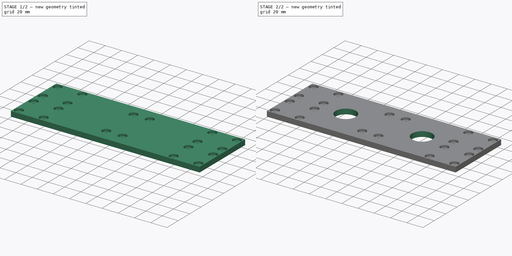
[diagram: build sequence overview — one tinted view per stage of 2, left to right]
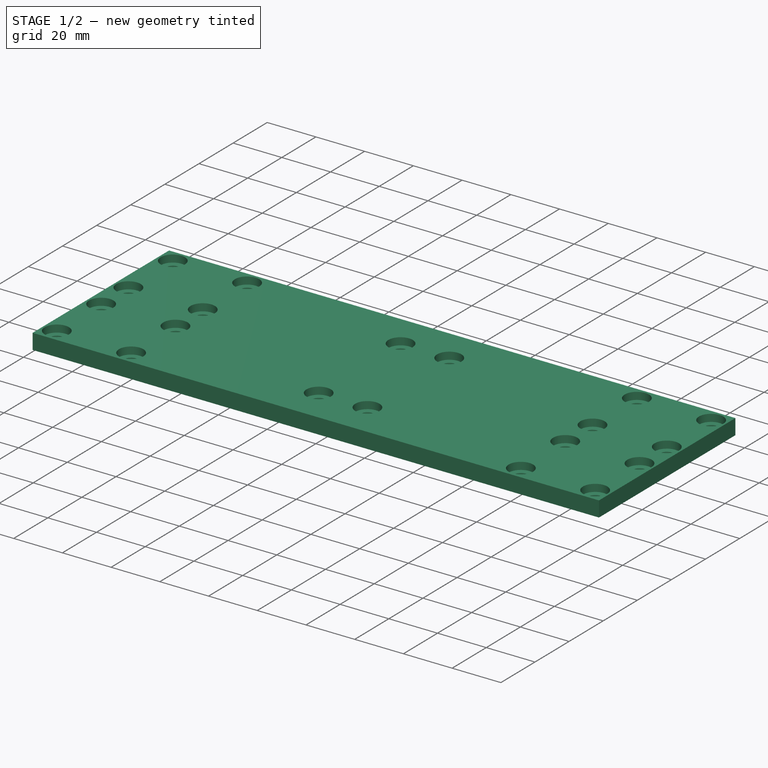
[diagram: stage 1 of 2 — iso view after this stage's code; geometry added in this stage tinted green]
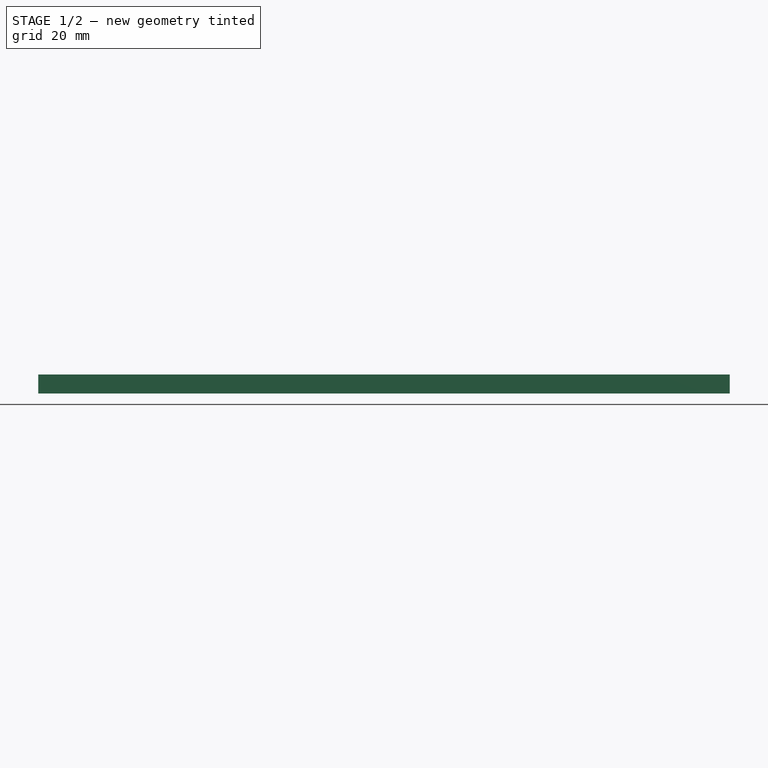
[diagram: stage 1 of 2 — front view after this stage's code; geometry added in this stage tinted green]
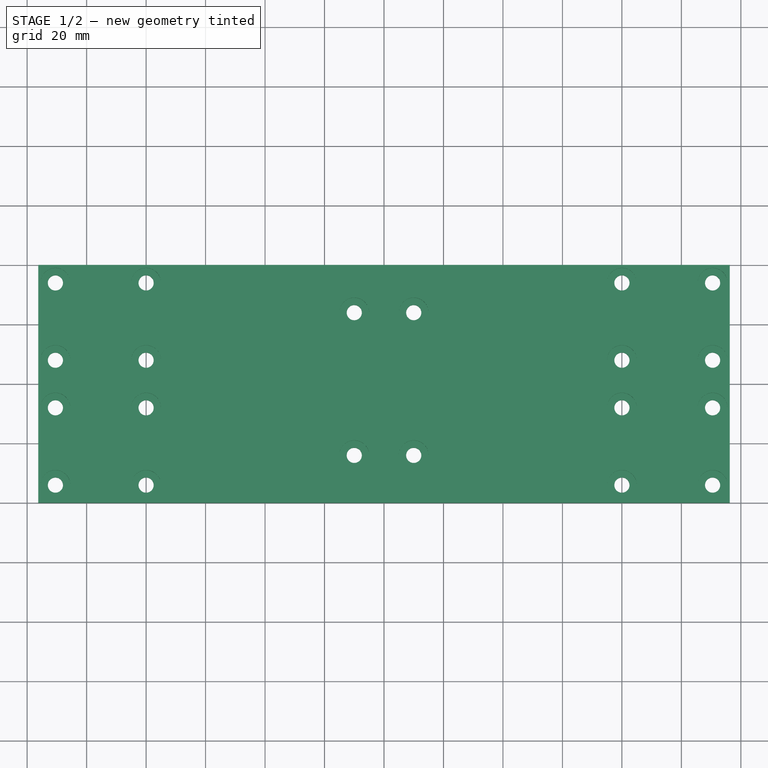
[diagram: stage 1 of 2 — top view after this stage's code; geometry added in this stage tinted green]
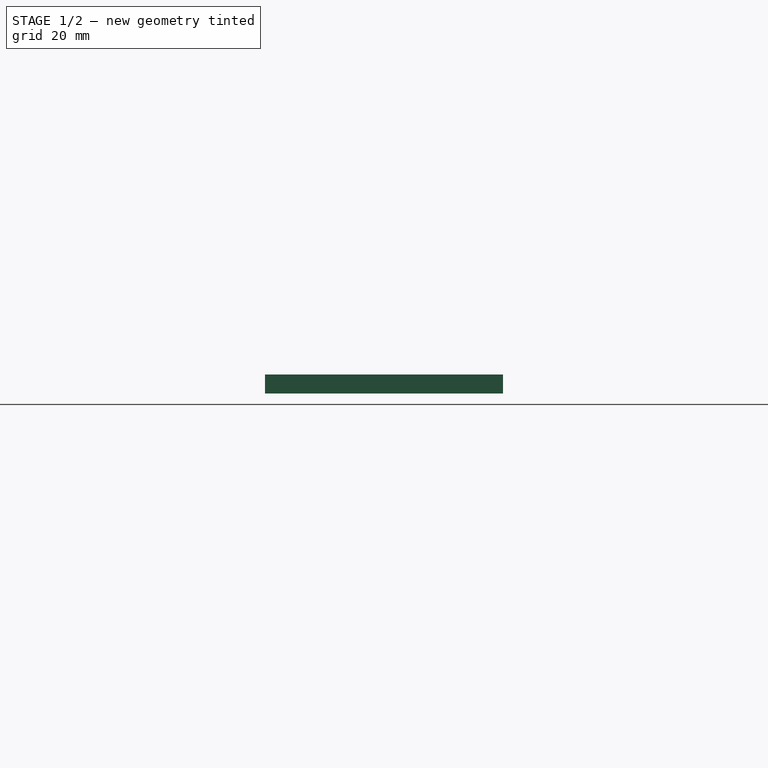
[diagram: stage 1 of 2 — right view after this stage's code; geometry added in this stage tinted green]
FCSTD DOCUMENT  (FreeCAD 0.19R23578 (Git))
Label: z_axis_bearing_plate
License: All rights reserved
LicenseURL: http://en.wikipedia.org/wiki/All_rights_reserved
objects: PartDesign::CoordinateSystem×6, Sketcher::SketchObject×3, PartDesign::Pad×1, PartDesign::Hole×1, PartDesign::Pocket×1, PartDesign::Body×1, App::Part×1
note: 16 computed .brp shape members not serialized (recipe doc carries the construction recipe); baked Part::Feature solids carry a one-line shape summary decoded from their .brp

FEATURE [Sketcher::SketchObject] Sketch023
  MapMode = 5
  Support = -> [XY_Plane029]
  sketch-geometry (6):
    g0: LineSegment StartX=-116.25 StartY=40 StartZ=0 EndX=116.25 EndY=40 EndZ=0
    g1: LineSegment StartX=116.25 StartY=40 StartZ=0 EndX=116.25 EndY=-40 EndZ=0
    g2: LineSegment StartX=116.25 StartY=-40 StartZ=0 EndX=-116.25 EndY=-40 EndZ=0
    g3: LineSegment StartX=-116.25 StartY=-40 StartZ=0 EndX=-116.25 EndY=40 EndZ=0
    g4: LineSegment StartX=-116.25 StartY=40 StartZ=0 EndX=116.25 EndY=-40 EndZ=0
    g5: LineSegment StartX=116.25 StartY=40 StartZ=0 EndX=-116.25 EndY=-40 EndZ=0
  constraints (16):
    c: Coincident(g0,g1)
    c: Coincident(g1,g2)
    c: Coincident(g2,g3)
    c: Coincident(g3,g0)
    c: Horizontal(g0)
    c: Horizontal(g2)
    c: Vertical(g1)
    c: Vertical(g3)
    c: DistanceX(g0,g0) = 232.5  'plate_width'
    c: DistanceY(g3,g3) = 80  'plate_height'
    c: Coincident(g4,g0)
    c: Coincident(g4,g1)
    c: Coincident(g5,g0)
    c: Coincident(g5,g2)
    c: PointOnObject(g-1,g5)
    c: PointOnObject(g-1,g4)
FEATURE [PartDesign::Pad] Pad011
  AllowMultiFace = false
  Direction = (1,1,1)
  Length = 6.35
  Length2 = 100
  Profile = -> Sketch023
  Type = 0
FEATURE [Sketcher::SketchObject] Sketch024
  AttachmentOffset = pos=(0,0,6.35) rot=(0,0,1;0rad)
  MapMode = 5
  Placement = pos=(0,0,6.35) rot=(0,0,1;0rad)
  Support = -> [XY_Plane029]
  sketch-geometry (55):
    g0: Circle CenterX=-110.5 CenterY=34 CenterZ=0 NormalX=0 NormalY=0 NormalZ=1 AngleXU=0 Radius=2.55
    g1: Circle CenterX=-110.5 CenterY=8 CenterZ=0 NormalX=0 NormalY=0 NormalZ=1 AngleXU=0 Radius=2.55
    g2: Circle CenterX=-80 CenterY=34 CenterZ=0 NormalX=0 NormalY=0 NormalZ=1 AngleXU=0 Radius=2.55
    g3: Circle CenterX=-80 CenterY=8 CenterZ=0 NormalX=0 NormalY=0 NormalZ=1 AngleXU=0 Radius=2.55
    g4: LineSegment StartX=-110.5 StartY=34 StartZ=0 EndX=-80 EndY=34 EndZ=0
    g5: LineSegment StartX=-80 StartY=34 StartZ=0 EndX=-80 EndY=8 EndZ=0
    g6: LineSegment StartX=-80 StartY=8 StartZ=0 EndX=-110.5 EndY=8 EndZ=0
    g7: LineSegment StartX=-110.5 StartY=8 StartZ=0 EndX=-110.5 EndY=34 EndZ=0
    g8: GeomPoint X=-95.25 Y=21 Z=0
    g9: LineSegment StartX=-110.5 StartY=34 StartZ=0 EndX=-80 EndY=8 EndZ=0
    g10: LineSegment StartX=-80 StartY=34 StartZ=0 EndX=-110.5 EndY=8 EndZ=0
    g11: Circle CenterX=80 CenterY=34 CenterZ=0 NormalX=0 NormalY=0 NormalZ=1 AngleXU=0 Radius=2.55
    g12: Circle CenterX=80 CenterY=8 CenterZ=0 NormalX=0 NormalY=0 NormalZ=1 AngleXU=0 Radius=2.55
    g13: Circle CenterX=110.5 CenterY=34 CenterZ=0 NormalX=0 NormalY=0 NormalZ=1 AngleXU=0 Radius=2.55
    g14: Circle CenterX=110.5 CenterY=8 CenterZ=0 NormalX=0 NormalY=0 NormalZ=1 AngleXU=0 Radius=2.55
    g15: LineSegment StartX=80 StartY=34 StartZ=0 EndX=110.5 EndY=34 EndZ=0
    g16: LineSegment StartX=110.5 StartY=34 StartZ=0 EndX=110.5 EndY=8 EndZ=0
    g17: LineSegment StartX=110.5 StartY=8 StartZ=0 EndX=80 EndY=8 EndZ=0
    g18: LineSegment StartX=80 StartY=8 StartZ=0 EndX=80 EndY=34 EndZ=0
    g19: GeomPoint X=95.25 Y=21 Z=0
    g20: LineSegment StartX=80 StartY=34 StartZ=0 EndX=110.5 EndY=8 EndZ=0
    g21: LineSegment StartX=110.5 StartY=34 StartZ=0 EndX=80 EndY=8 EndZ=0
    g22: LineSegment StartX=-110.5 StartY=34 StartZ=0 EndX=80 EndY=34 EndZ=0
    g23: Circle CenterX=-110.5 CenterY=-8 CenterZ=0 NormalX=0 NormalY=0 NormalZ=1 AngleXU=0 Radius=2.55
    g24: Circle CenterX=-110.5 CenterY=-34 CenterZ=0 NormalX=0 NormalY=0 NormalZ=1 AngleXU=0 Radius=2.55
    g25: Circle CenterX=-80 CenterY=-8 CenterZ=0 NormalX=0 NormalY=0 NormalZ=1 AngleXU=0 Radius=2.55
    g26: Circle CenterX=-80 CenterY=-34 CenterZ=0 NormalX=0 NormalY=0 NormalZ=1 AngleXU=0 Radius=2.55
    g27: LineSegment StartX=-110.5 StartY=-8 StartZ=0 EndX=-80 EndY=-8 EndZ=0
    g28: LineSegment StartX=-80 StartY=-8 StartZ=0 EndX=-80 EndY=-34 EndZ=0
    g29: LineSegment StartX=-80 StartY=-34 StartZ=0 EndX=-110.5 EndY=-34 EndZ=0
    g30: LineSegment StartX=-110.5 StartY=-34 StartZ=0 EndX=-110.5 EndY=-8 EndZ=0
    g31: GeomPoint X=-95.25 Y=-21 Z=0
    g32: LineSegment StartX=-110.5 StartY=-8 StartZ=0 EndX=-80 EndY=-34 EndZ=0
    g33: LineSegment StartX=-80 StartY=-8 StartZ=0 EndX=-110.5 EndY=-34 EndZ=0
    g34: LineSegment StartX=-110.5 StartY=34 StartZ=0 EndX=-110.5 EndY=-8 EndZ=0
    g35: Circle CenterX=80 CenterY=-8 CenterZ=0 NormalX=0 NormalY=0 NormalZ=1 AngleXU=0 Radius=2.55
    g36: Circle CenterX=80 CenterY=-34 CenterZ=0 NormalX=0 NormalY=0 NormalZ=1 AngleXU=0 Radius=2.55
    g37: Circle CenterX=110.5 CenterY=-8 CenterZ=0 NormalX=0 NormalY=0 NormalZ=1 AngleXU=0 Radius=2.55
    g38: Circle CenterX=110.5 CenterY=-34 CenterZ=0 NormalX=0 NormalY=0 NormalZ=1 AngleXU=0 Radius=2.55
    g39: LineSegment StartX=80 StartY=-8 StartZ=0 EndX=110.5 EndY=-8 EndZ=0
    g40: LineSegment StartX=110.5 StartY=-8 StartZ=0 EndX=110.5 EndY=-34 EndZ=0
    g41: LineSegment StartX=110.5 StartY=-34 StartZ=0 EndX=80 EndY=-34 EndZ=0
    g42: LineSegment StartX=80 StartY=-34 StartZ=0 EndX=80 EndY=-8 EndZ=0
    g43: GeomPoint X=95.25 Y=-21 Z=0
    g44: LineSegment StartX=80 StartY=-8 StartZ=0 EndX=110.5 EndY=-34 EndZ=0
    g45: LineSegment StartX=110.5 StartY=-8 StartZ=0 EndX=80 EndY=-34 EndZ=0
    g46: LineSegment StartX=-110.5 StartY=-8 StartZ=0 EndX=80 EndY=-8 EndZ=0
    g47: Circle CenterX=-10 CenterY=24 CenterZ=0 NormalX=0 NormalY=0 NormalZ=1 AngleXU=0 Radius=2.55
    g48: Circle CenterX=10 CenterY=24 CenterZ=0 NormalX=0 NormalY=0 NormalZ=1 AngleXU=0 Radius=2.55
    g49: Circle CenterX=10 CenterY=-24 CenterZ=0 NormalX=0 NormalY=0 NormalZ=1 AngleXU=0 Radius=2.55
    g50: Circle CenterX=-10 CenterY=-24 CenterZ=0 NormalX=0 NormalY=0 NormalZ=1 AngleXU=0 Radius=2.55
    g51: LineSegment StartX=-10 StartY=24 StartZ=0 EndX=10 EndY=24 EndZ=0
    g52: LineSegment StartX=10 StartY=24 StartZ=0 EndX=10 EndY=-24 EndZ=0
    g53: LineSegment StartX=10 StartY=-24 StartZ=0 EndX=-10 EndY=-24 EndZ=0
    g54: LineSegment StartX=-10 StartY=-24 StartZ=0 EndX=-10 EndY=24 EndZ=0
  constraints (130):
    c: Coincident(g4,g5)
    c: Coincident(g5,g6)
    c: Coincident(g6,g7)
    c: Coincident(g7,g4)
    c: Horizontal(g4)
    c: Horizontal(g6)
    c: Vertical(g5)
    c: Vertical(g7)
    c: Coincident(g4,g0)
    c: Coincident(g3,g5)
    c: Coincident(g2,g4)
    c: Coincident(g6,g1)
    c: Diameter(g0) = 5.1
    c: Equal(g0,g2)
    c: Equal(g2,g3)
    c: Equal(g3,g1)
    c: Coincident(g9,g0)
    c: Coincident(g9,g3)
    c: Coincident(g10,g2)
    c: Coincident(g10,g1)
    c: PointOnObject(g8,g10)
    c: PointOnObject(g8,g9)
    c: DistanceX(g6,g6) = 30.5
    c: DistanceY(g5,g5) = 26
    c: DistanceY(g-1,g8) = 21
    c: DistanceX(g8,g-1) = 95.25
    c: Coincident(g15,g16)
    c: Coincident(g16,g17)
    c: Coincident(g17,g18)
    c: Coincident(g18,g15)
    c: Horizontal(g15)
    c: Horizontal(g17)
    c: Vertical(g16)
    c: Vertical(g18)
    c: Coincident(g15,g11)
    c: Coincident(g14,g16)
    c: Coincident(g13,g15)
    c: Coincident(g17,g12)
    c: Diameter(g11) = 5.1
    c: Equal(g11,g13)
    c: Equal(g13,g14)
    c: Equal(g14,g12)
    c: Coincident(g20,g11)
    c: Coincident(g20,g14)
    c: Coincident(g21,g13)
    c: Coincident(g21,g12)
    c: PointOnObject(g19,g21)
    c: PointOnObject(g19,g20)
    c: DistanceX(g17,g17) = 30.5
    c: DistanceY(g16,g16) = 26
    c: Coincident(g0,g22)
    c: Coincident(g11,g22)
    c: Distance(g22) = 190.5
    c: Coincident(g27,g28)
    c: Coincident(g28,g29)
    c: Coincident(g29,g30)
    c: Coincident(g30,g27)
    c: Horizontal(g27)
    c: Horizontal(g29)
    c: Vertical(g28)
    c: Vertical(g30)
    c: Coincident(g27,g23)
    c: Coincident(g26,g28)
    c: Coincident(g25,g27)
    c: Coincident(g29,g24)
    c: Diameter(g23) = 5.1
    c: Equal(g23,g25)
    c: Equal(g25,g26)
    c: Equal(g26,g24)
    c: Coincident(g32,g23)
    c: Coincident(g32,g26)
    c: Coincident(g33,g25)
    c: Coincident(g33,g24)
    c: PointOnObject(g31,g33)
    c: PointOnObject(g31,g32)
    c: DistanceX(g29,g29) = 30.5
    c: DistanceY(g28,g28) = 26
    c: Coincident(g0,g34)
    c: Coincident(g23,g34)
    c: Distance(g34) = 42
    c: Perpendicular(g34,g22)
    c: Coincident(g39,g40)
    c: Coincident(g40,g41)
    c: Coincident(g41,g42)
    c: Coincident(g42,g39)
    c: Horizontal(g39)
    c: Horizontal(g41)
    c: Vertical(g40)
    c: Vertical(g42)
    c: Coincident(g39,g35)
    c: Coincident(g38,g40)
    c: Coincident(g37,g39)
    c: Coincident(g41,g36)
    c: Diameter(g35) = 5.1
    c: Equal(g35,g37)
    c: Equal(g37,g38)
    c: Equal(g38,g36)
    c: Coincident(g44,g35)
    c: Coincident(g44,g38)
    c: Coincident(g45,g37)
    c: Coincident(g45,g36)
    c: PointOnObject(g43,g45)
    c: PointOnObject(g43,g44)
    c: DistanceX(g41,g41) = 30.5
    c: DistanceY(g40,g40) = 26
    c: Coincident(g23,g46)
    c: Coincident(g35,g46)
    c: Equal(g22,g46)
    c: Parallel(g46,g22)
    c: Horizontal(g22)
    c: Coincident(g51,g52)
    c: Coincident(g52,g53)
    c: Coincident(g53,g54)
    c: Coincident(g54,g51)
    c: Horizontal(g51)
    c: Horizontal(g53)
    c: Vertical(g52)
    c: Vertical(g54)
    c: Coincident(g51,g47)
    c: Coincident(g52,g49)
    c: Diameter(g48) = 5.1
    c: Equal(g48,g47)
    c: Equal(g47,g50)
    c: Equal(g50,g49)
    c: Coincident(g48,g51)
    c: Coincident(g53,g50)
    c: DistanceX(g51,g51) = 20
    c: DistanceY(g52,g52) = 48
    c: DistanceY(g-1,g48) = 24
    c: DistanceX(g-1,g48) = 10
FEATURE [PartDesign::Hole] Hole
  AllowMultiFace = false
  BaseFeature = -> Pad011
  Depth = 25
  DepthType = 1
  Diameter = 5.1
  DrillPoint = 0
  DrillPointAngle = 118
  HoleCutCountersinkAngle = 90
  HoleCutDepth = 3
  HoleCutDiameter = 10
  HoleCutType = 1
  ModelActualThread = false
  Profile = -> Sketch024
  Tapered = false
  TaperedAngle = 90
  ThreadAngle = 0
  ThreadClass = 0
  ThreadCutOffInner = 0
  ThreadCutOffOuter = 0
  ThreadDirection = 0
  ThreadFit = 0
  ThreadPitch = 0
  ThreadSize = 0
  ThreadType = 0
  Threaded = false
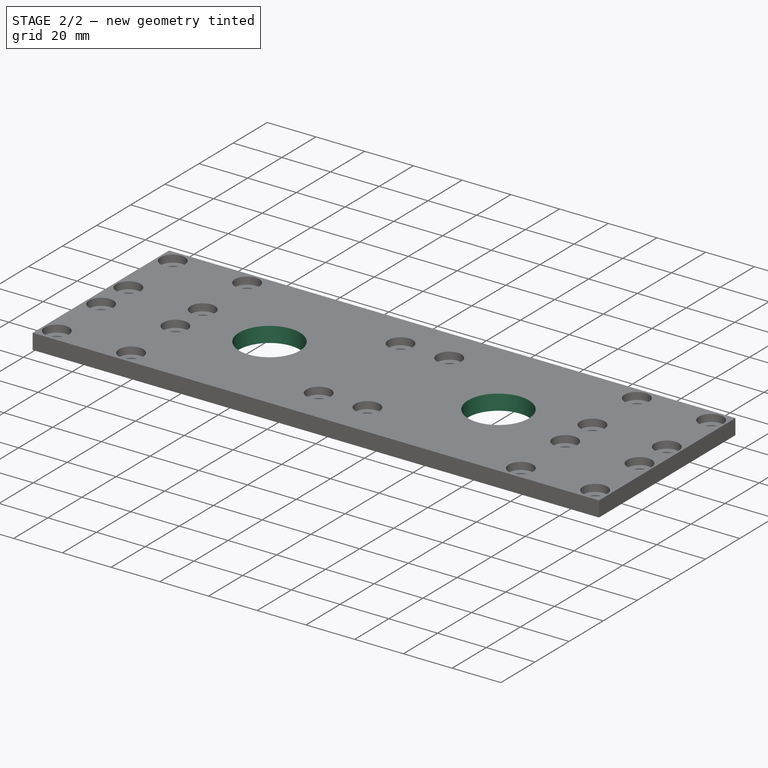
[diagram: stage 2 of 2 — iso view after this stage's code; geometry added in this stage tinted green]
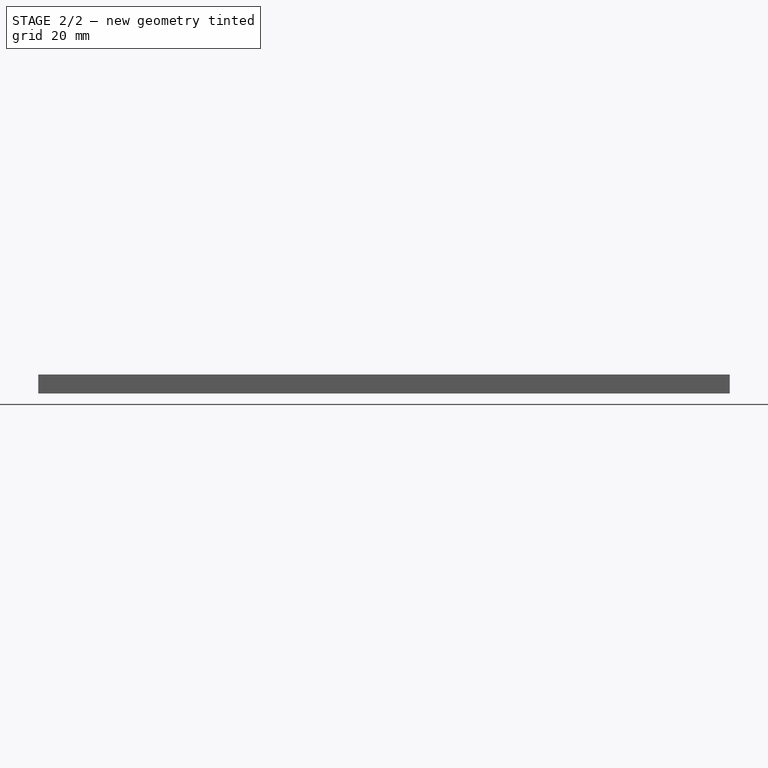
[diagram: stage 2 of 2 — front view after this stage's code; geometry added in this stage tinted green]
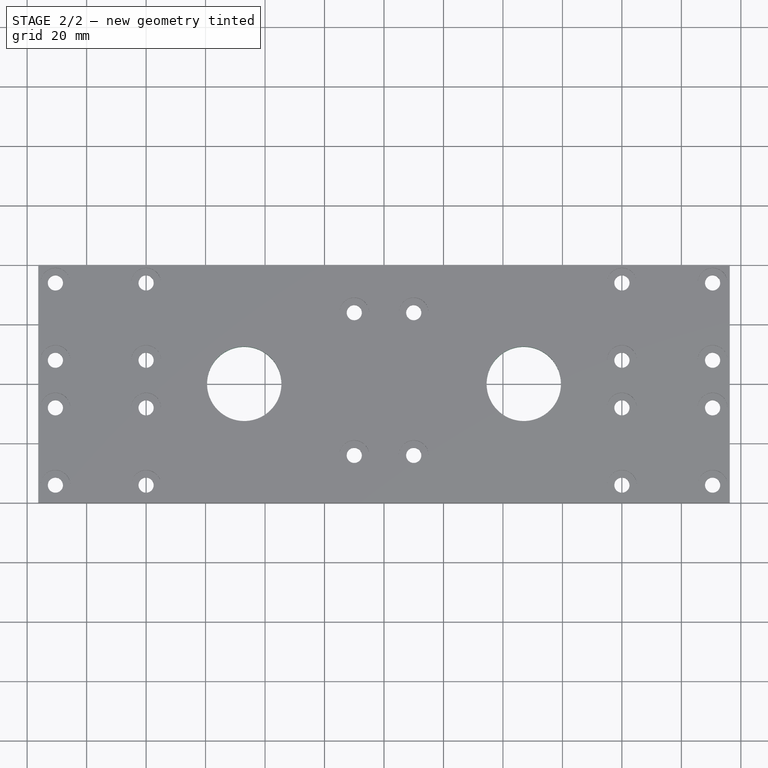
[diagram: stage 2 of 2 — top view after this stage's code; geometry added in this stage tinted green]
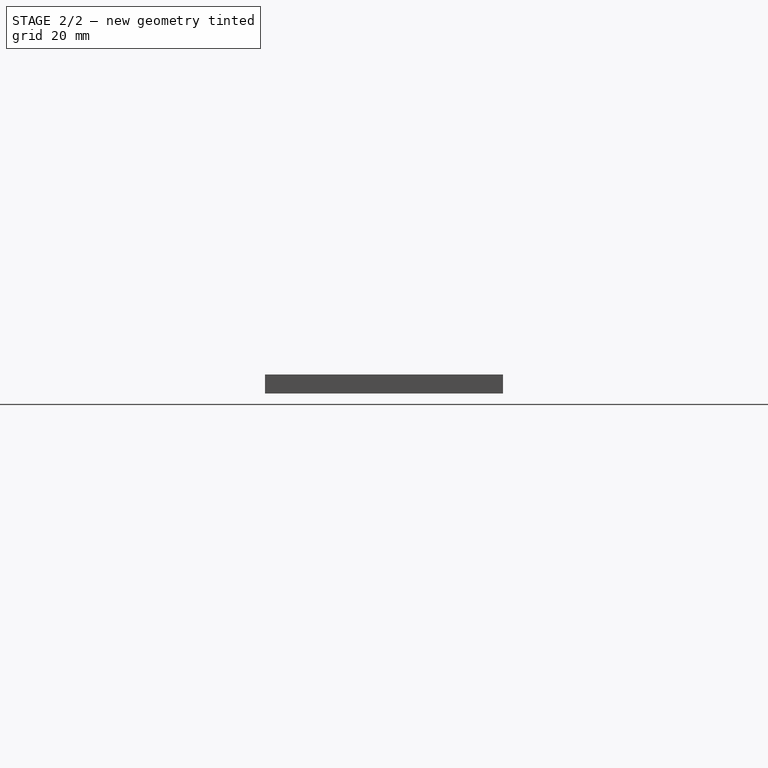
[diagram: stage 2 of 2 — right view after this stage's code; geometry added in this stage tinted green]
FEATURE [Sketcher::SketchObject] Sketch025
  AttachmentOffset = pos=(0,0,6.35) rot=(0,0,1;0rad)
  MapMode = 5
  Placement = pos=(0,0,6.35) rot=(0,0,1;0rad)
  Support = -> [XY_Plane029]
  sketch-geometry (2):
    g0: Circle CenterX=-47 CenterY=0 CenterZ=0 NormalX=0 NormalY=0 NormalZ=1 AngleXU=0 Radius=12.5
    g1: Circle CenterX=47 CenterY=0 CenterZ=0 NormalX=0 NormalY=0 NormalZ=1 AngleXU=0 Radius=12.5
  constraints (5):
    c: Diameter(g0) = 25
    c: PointOnObject(g0,g-1)
    c: DistanceX(g0,g-1) = 47
    c: Symmetric(g0,g1,g-2)
    c: Equal(g0,g1)
FEATURE [PartDesign::Pocket] Pocket011
  AllowMultiFace = false
  BaseFeature = -> Hole
  Length = 5
  Length2 = 100
  Profile = -> Sketch025
  Type = 1
FEATURE [PartDesign::Body] Body010  label="Body"
  Group = -> [Sketch023,Pad011,Sketch024,Hole,Sketch025,Pocket011]
  Origin = -> Origin029
  Tip = -> Pocket011
FEATURE [PartDesign::CoordinateSystem] LCS_1
  AttacherType = Attacher::AttachEngine3D
  MapMode = 45
  Placement = pos=(1.15e-14,1.8e-15,0) rot=(0,0,1;0rad)
  Support = -> [Pocket011]
FEATURE [PartDesign::CoordinateSystem] LCS_2
  AttacherType = Attacher::AttachEngine3D
  MapMode = 45
  Placement = pos=(-95.25,-21,0) rot=(0,0,1;1.5708rad)
  Support = -> [Pocket011]
FEATURE [PartDesign::CoordinateSystem] LCS_3
  AttacherType = Attacher::AttachEngine3D
  MapMode = 45
  Placement = pos=(-95.25,21,0) rot=(0,0,1;1.5708rad)
  Support = -> [Pocket011]
FEATURE [PartDesign::CoordinateSystem] LCS_4
  AttacherType = Attacher::AttachEngine3D
  MapMode = 45
  Placement = pos=(95.25,-21,0) rot=(0,0,1;1.5708rad)
  Support = -> [Pocket011]
FEATURE [PartDesign::CoordinateSystem] LCS_5
  AttacherType = Attacher::AttachEngine3D
  MapMode = 45
  Placement = pos=(95.25,21,0) rot=(0,0,1;1.5708rad)
  Support = -> [Pocket011]
FEATURE [PartDesign::CoordinateSystem] LCS_6
  AttacherType = Attacher::AttachEngine3D
  MapMode = 45
  Placement = pos=(2.35e-14,0,6.35) rot=(0,0,1;0rad)
  Support = -> [Pocket011]
FEATURE [App::Part] Part017  label="bearing_plate"
  Group = -> [Body010,LCS_1,LCS_2,LCS_3,LCS_4,LCS_5,LCS_6]
  Origin = -> Origin024
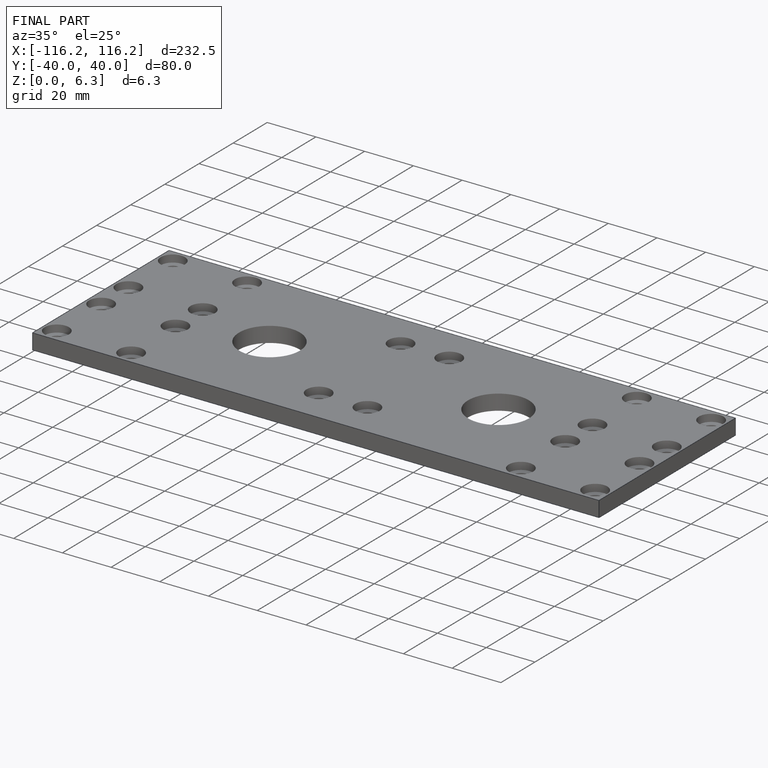
[diagram: finished part — iso view with bounding-box wireframe]
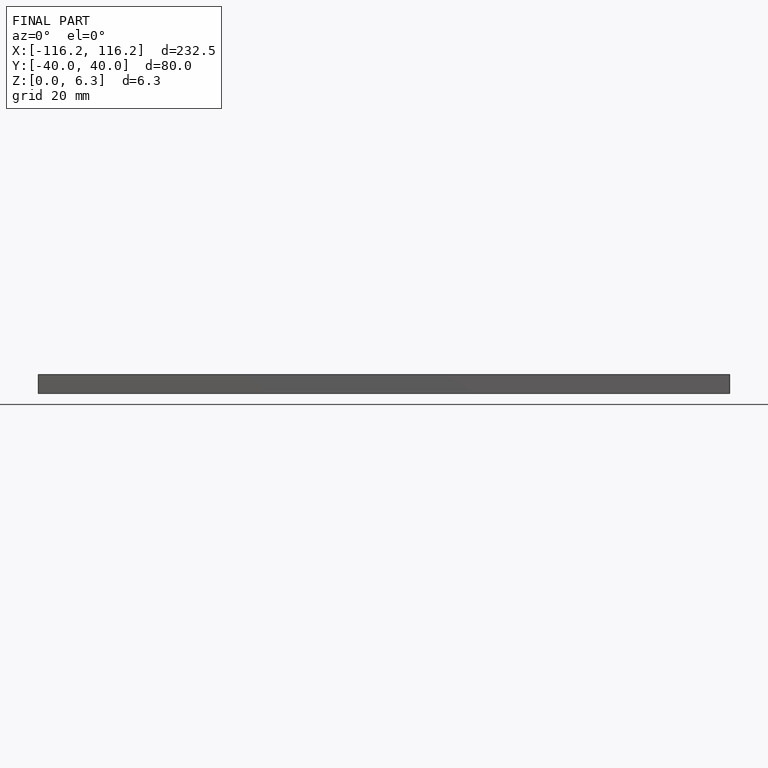
[diagram: finished part — front view with bounding-box wireframe]
